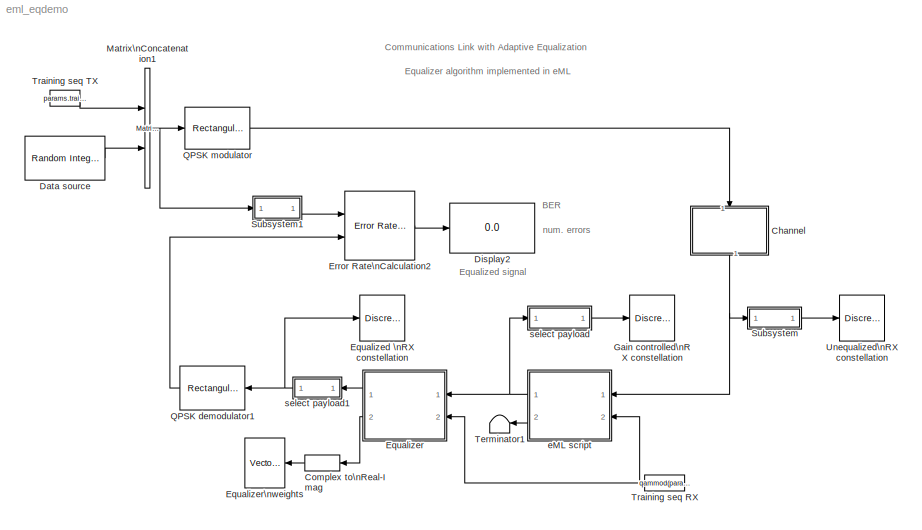
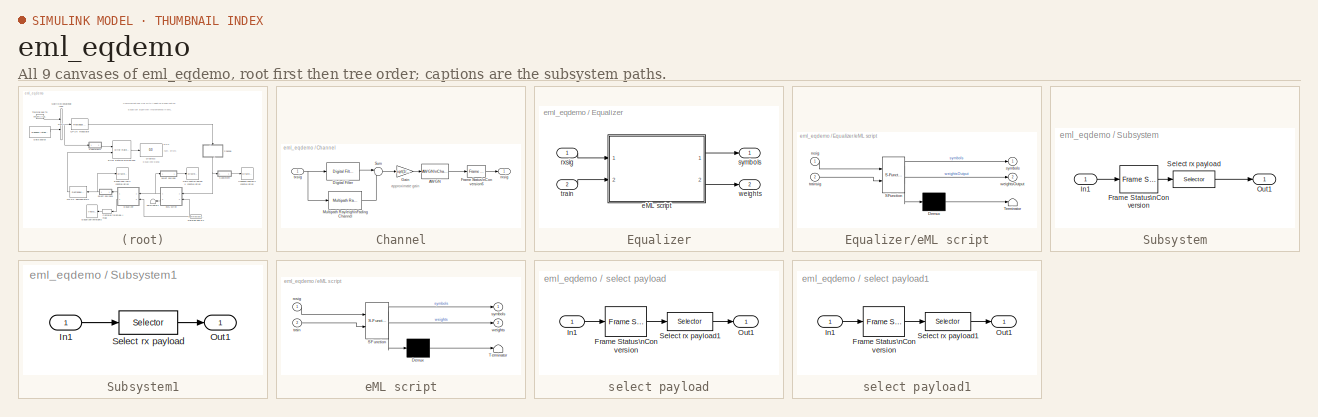
[diagram: thumbnail index - all 9 canvases of the model, root first then tree order]
MODEL eml_eqdemo
KIND model
CONFIG InitFcn = initsim
BLOCK [Reference]  Gain controlled\nRX constellation  REF=commsink2/Discrete-Time\nScatter Plot\nScope
  AxisGrid = on
  FigPos = [261 32 242 242]
  FrameNumber = off
  LineColors = b
  LineMarkers = .
  Ports = [1]
  ShowPortLabels = on
  SourceBlock = commsink2/Discrete-Time\nScatter Plot\nScope
  SourceType = Discrete-Time Scatter Plot Scope
  Tag = ScatterPlot
  block_type_ = scatter
  fading = on
  figTitle = Scatter Plot
  inphaseLabel = In-phase Amplitude
  numLinesMax = 8
  numNewFrames = 100
  numTraces = 200
  offsetEye = 0
  openScopeAtSimStart = on
  quadratureLabel = Quadrature Amplitude
  render = on
  sampPerSymb = 1
  xMax = 1.93655728027381
  xMin = -1.84900078842742
  yMax = 1.91193457746611
  yMin = -1.87362349123512
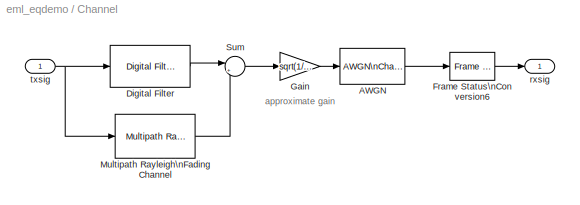
BLOCK [SubSystem] Channel
  MaskCallbackString = ||||
  MaskDisplay = disp('Rician Fading\\nChannel')
  MaskEnableString = on,on,on,on,on
  MaskIconFrame = on
  MaskIconOpaque = on
  MaskIconRotate = none
  MaskIconUnits = autoscale
  MaskPromptString = Fading component gains (dB):|Spectral component gains (dB):|Maximum Doppler shift (Hz):|SNR (dB):|Symbol period (s):
  MaskStyleString = edit,edit,edit,edit,edit
  MaskTabNameString = ,,,,
  MaskToolTipString = on,on,on,on,on
  MaskTunableValueString = on,on,on,on,on
  MaskType = 4-path Rician fading chanel
  MaskValueString = 0+[0 -9 -60 -90]|[-10 -60 -60 -60]|0.0001/params.symbolPeriod|60|params.symbolPeriod
  MaskVarAliasString = ,,,,
  MaskVariables = gain_fade=@1;gain_spec=@2;doppler=@3;SNRdB=@4;T=@5;
  MaskVisibilityString = on,on,on,on,on
  MinAlgLoopOccurrences = off
  Ports = [1, 1]
  PropExecContextAcrossSSBoundary = on
  RTWSystemCode = Auto
  TreatAsAtomicUnit = off
BLOCK [Reference] Channel/AWGN  REF=commchan2/AWGN\nChannel
  EbNodB = 10
  EsNodB = 10
  Ports = [1, 1]
  Ps = 1
  SNRdB = SNRdB
  ShowPortLabels = on
  SourceBlock = commchan2/AWGN\nChannel
  SourceType = AWGN Channel
  Tsym = 1
  bitsPerSym = 1
  noiseMode = Signal to noise ratio  (SNR)
  seed = 67
  variance = 1
BLOCK [Reference] Channel/Digital Filter  REF=dsparch4/Digital Filter
  AllPoleFiltStruct = Direct form
  BiQuadCoeffs = [1 0.3 0.4 1 0.1 0.2]
  CoeffSource = Specify via dialog
  DenCoeffs = [1 0.1]
  FIRFiltStruct = Direct form
  FiltPerSampPopup = One filter per frame
  IC = 0
  ICden = 0
  ICnum = 0
  IIRFiltStruct = Direct form II transposed
  LatticeCoeffs = [0.2 0.4]
  NumCoeffs = 10.^(gain_spec/20)
  Ports = [1, 1]
  SourceBlock = dsparch4/Digital Filter
  SourceType = Digital Filter
  TypePopup = FIR (all zeros)
  accumFracLength = 30
  accumMode = Same as output
  accumWordLength = 32
  additionalParams = off
  allowOverrides = on
  denIgnore = on
  firstCoeffFracLength = 15
  firstCoeffMode = Same as input
  firstCoeffWordLength = 16
  memoryFracLength = 15
  memoryMode = Same as input
  memoryWordLength = 16
  outputFracLength = 15
  outputMode = Same as input
  outputWordLength = 16
  overflowMode = off
  prodOutputFracLength = 30
  prodOutputMode = Same as accumulator
  prodOutputWordLength = 32
  roundingMode = Floor
  secondCoeffFracLength = 15
  secondCoeffMode = Same as numerator
  secondCoeffWordLength = 16
  showAcc = off
  showCoeff = off
  showMem = off
  showMpy = off
  showOut = off
  thirdCoeffFracLength = 15
  thirdCoeffMode = Same as input
  thirdCoeffWordLength = 16
BLOCK [Reference] Channel/Frame Status\nConversion6  REF=dspsigattribs/Frame Status\nConversion
  Ports = [1, 1]
  ShowPortLabels = off
  SourceBlock = dspsigattribs/Frame Status\nConversion
  SourceType = Frame Status Conversion
  growRefPort = off
  outframe = Sample-based
BLOCK [Gain] Channel/Gain
  Gain = sqrt(1/(sum(10.^(gain_spec/10))+sum(10.^(gain_fade/10))))
BLOCK [Reference] Channel/Multipath Rayleigh\nFading Channel  REF=commchan2/Multipath Rayleigh\nFading Channel
  Fd = doppler
  Ports = [1, 1]
  Seed = 73
  ShowPortLabels = on
  SourceBlock = commchan2/Multipath Rayleigh\nFading Channel
  SourceType = Multipath Rayleigh Fading Channel
  delayVec = (0:3)*T
  gainVecdB = gain_fade
  normGain = off
  simTs = T
BLOCK [Sum] Channel/Sum
  IconShape = round
  InputSameDT = off
  Inputs = |++
  OutDataTypeMode = Inherit via internal rule
  Ports = [2, 1]
BLOCK [Outport] Channel/rxsig
  IconDisplay = Port number
BLOCK [Inport] Channel/txsig
  IconDisplay = Port number
  LatchInput = off
  Port = 1
BLOCK [ComplexToRealImag] Complex to\nReal-Imag
  Output = Real
  Ports = [1, 1]
BLOCK [Reference] Data source  REF=commrandsrc2/Random Integer\nGenerator
  Ports = [0, 1]
  ShowPortLabels = on
  SourceBlock = commrandsrc2/Random Integer\nGenerator
  SourceType = Random Integer Generator
  Ts = params.sourcePeriod
  frameBased = on
  mul = 4
  orient = off
  sampPerFrame = params.Nsource
  seed = 37
BLOCK [Display] Display2
  Decimation = 1
  Ports = [1]
BLOCK [Reference] Equalized \nRX constellation  REF=commsink2/Discrete-Time\nScatter Plot\nScope
  AxisGrid = on
  FigPos = [510 32 242 242]
  FrameNumber = off
  LineColors = b
  LineMarkers = .
  Ports = [1]
  ShowPortLabels = on
  SourceBlock = commsink2/Discrete-Time\nScatter Plot\nScope
  SourceType = Discrete-Time Scatter Plot Scope
  Tag = ScatterPlot
  block_type_ = scatter
  fading = on
  figTitle = Scatter Plot
  inphaseLabel = In-phase Amplitude
  numLinesMax = 8
  numNewFrames = 100
  numTraces = 200
  offsetEye = 0
  openScopeAtSimStart = on
  quadratureLabel = Quadrature Amplitude
  render = on
  sampPerSymb = 1
  xMax = 1.93655728027381
  xMin = -1.84900078842742
  yMax = 1.91193457746611
  yMin = -1.87362349123512
BLOCK [SubSystem] Equalizer
  MaskCallbackString = ||
  MaskEnableString = on,on,on
  MaskIconFrame = on
  MaskIconOpaque = off
  MaskIconRotate = none
  MaskIconUnits = autoscale
  MaskInitialization = M = 6; % number of weights\nmu = 0.025; % step size\nlambda = 0.99; % forget factor\ndelta1 = 0.1 + 0i; % diagonal element of inv. corr. mtx.\n
  MaskPromptString = Adaptive algorithm:|Reference tap:|Reset weights each frame
  MaskStyleString = popup(LMS|RLS),popup(1|2|3|4|5|6),checkbox
  MaskTabNameString = ,,
  MaskToolTipString = on,on,on
  MaskTunableValueString = off,off,off
  MaskType = Receiver processing (adaptive equalizer)
  MaskValueString = RLS|4|off
  MaskVarAliasString = ,,
  MaskVariables = eqMode=@1;refTap=@2;resetWeights=@3;
  MaskVisibilityString = on,on,on
  MinAlgLoopOccurrences = off
  Ports = [2, 2]
  PropExecContextAcrossSSBoundary = on
  RTWSystemCode = Auto
  TreatAsAtomicUnit = off
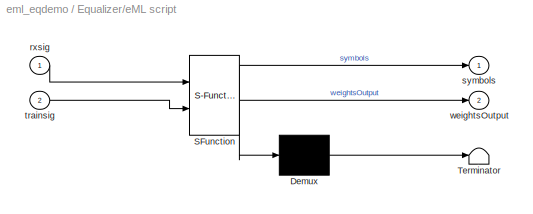
BLOCK [SubSystem] Equalizer/eML script
  MaskDescription = Stateflow diagram
  MaskDisplay = disp('equalizer');
  MaskIconFrame = on
  MaskIconOpaque = off
  MaskIconRotate = none
  MaskIconUnits = autoscale
  MaskSelfModifiable = on
  MaskType = Stateflow
  MinAlgLoopOccurrences = off
  Ports = [2, 2]
  PropExecContextAcrossSSBoundary = on
  RTWSystemCode = Auto
  TreatAsAtomicUnit = off
BLOCK [Demux] Equalizer/eML script/ Demux 
  Outputs = 1
  Ports = [1, 1]
BLOCK [S-Function] Equalizer/eML script/ SFunction 
  FunctionName = sf_sfun
  Parameters = delta1,eqMode,lambda,mu,refTap,resetWeights
  PortCounts = [2 3]
  Ports = [2, 3]
  Tag = Stateflow S-Function eml_eqdemo 2
BLOCK [Terminator] Equalizer/eML script/ Terminator 
BLOCK [Inport] Equalizer/eML script/rxsig
  IconDisplay = Port number
  LatchInput = off
  Port = 1
BLOCK [Outport] Equalizer/eML script/symbols
  IconDisplay = Port number
BLOCK [Inport] Equalizer/eML script/trainsig
  IconDisplay = Port number
  LatchInput = off
  Port = 2
BLOCK [Outport] Equalizer/eML script/weightsOutput
  IconDisplay = Port number
  Port = 2
BLOCK [Inport] Equalizer/rxsig
  IconDisplay = Port number
  LatchInput = off
  Port = 1
BLOCK [Outport] Equalizer/symbols
  IconDisplay = Port number
BLOCK [Inport] Equalizer/train
  IconDisplay = Port number
  LatchInput = off
  Port = 2
BLOCK [Outport] Equalizer/weights
  IconDisplay = Port number
  Port = 2
BLOCK [Reference] Equalizer\nweights  REF=dspsnks4/Vector\nScope
  AxisGrid = on
  AxisLegend = off
  AxisProperties = off
  AxisZoom = off
  DisplayProperties = off
  Domain = User-defined
  FigPos = [762 31 251 243]
  FrameNumber = off
  HorizSpan = 1
  InheritXIncr = off
  LineColors = [0 0 1]
  LineMarkers = .
  LineProperties = off
  Memory = off
  OpenScopeAtSimStart = on
  OpenScopeImmediately = off
  Ports = [1]
  ScopeProperties = off
  ShowPortLabels = off
  SourceBlock = dspsnks4/Vector\nScope
  SourceType = Vector Scope
  XIncr = 1
  XLabel = delay
  XRange = [0...Fs/2]
  XUnits = Hertz
  YLabel = Amplitude
  YMax = 2
  YMin = -2
  YUnits = dB
BLOCK [Reference] Error Rate\nCalculation2  REF=commsink2/Error Rate\nCalculation
  N = 0
  PMode = Port
  Ports = [2, 1]
  RsMode2 = off
  SourceBlock = commsink2/Error Rate\nCalculation
  SourceType = Error Rate Calculation
  WsName = ErrorVec
  cp_mode = Entire frame
  maxBits = 1e6
  numErr = 100
  st_delay = 0
  stop = off
  subframe = []
BLOCK [Reference] Matrix\nConcatenation1  REF=simulink/Math\nOperations/Matrix\nConcatenation
  Ports = [2, 1]
  SourceBlock = simulink/Math\nOperations/Matrix\nConcatenation
  SourceType = Matrix Concatenation
  catMethod = Vertical
  numInports = 2
BLOCK [Reference] QPSK demodulator1  REF=commdigbbndam2/Rectangular QAM\nDemodulator\nBaseband
  AvgPow = 1
  Dec = Binary
  M = params.M
  MinDist = 2
  OutType = Integer
  PeakPow = 1
  Ph = 0
  Ports = [1, 1]
  PowType = Min. distance between symbols
  SourceBlock = commdigbbndam2/Rectangular QAM\nDemodulator\nBaseband
  SourceType = Rectangular QAM Demodulator Baseband
  numSamp = 1
BLOCK [Reference] QPSK modulator  REF=commdigbbndam2/Rectangular QAM\nModulator\nBaseband
  AvgPow = 1
  Enc = Binary
  InType = Integer
  M = params.M
  MinDist = 2
  PeakPow = 1
  Ph = 0
  Ports = [1, 1]
  PowType = Min. distance between symbols
  SourceBlock = commdigbbndam2/Rectangular QAM\nModulator\nBaseband
  SourceType = Rectangular QAM Modulator Baseband
  numSamp = 1
BLOCK [SubSystem] Subsystem
  MaskDisplay = disp('Payload')\n
  MaskIconFrame = on
  MaskIconOpaque = on
  MaskIconRotate = none
  MaskIconUnits = autoscale
  MinAlgLoopOccurrences = off
  Ports = [1, 1]
  PropExecContextAcrossSSBoundary = on
  RTWSystemCode = Auto
  TreatAsAtomicUnit = off
BLOCK [Reference] Subsystem/Frame Status\nConversion  REF=dspsigattribs/Frame Status\nConversion
  Ports = [1, 1]
  ShowPortLabels = off
  SourceBlock = dspsigattribs/Frame Status\nConversion
  SourceType = Frame Status Conversion
  growRefPort = off
  outframe = Frame-based
BLOCK [Inport] Subsystem/In1
  IconDisplay = Port number
  LatchInput = off
  Port = 1
BLOCK [Outport] Subsystem/Out1
  IconDisplay = Port number
BLOCK [Selector] Subsystem/Select rx payload
  Elements = (params.Ntrain+1):(params.Nsymbols-10)
  InputPortWidth = params.Nsymbols
  Ports = [1, 1]
BLOCK [SubSystem] Subsystem1
  MaskDisplay = disp('Payload')\n
  MaskIconFrame = on
  MaskIconOpaque = on
  MaskIconRotate = none
  MaskIconUnits = autoscale
  MinAlgLoopOccurrences = off
  Ports = [1, 1]
  PropExecContextAcrossSSBoundary = on
  RTWSystemCode = Auto
  TreatAsAtomicUnit = off
BLOCK [Inport] Subsystem1/In1
  IconDisplay = Port number
  LatchInput = off
  Port = 1
BLOCK [Outport] Subsystem1/Out1
  IconDisplay = Port number
BLOCK [Selector] Subsystem1/Select rx payload
  Elements = (params.Ntrain+1):(params.Nsymbols-10)
  InputPortWidth = params.Nsymbols
  Ports = [1, 1]
BLOCK [Terminator] Terminator1
BLOCK [Constant] Training seq RX
  Value = qammod(params.trainSeq, params.M)
BLOCK [Constant] Training seq TX
  Value = params.trainSeq
BLOCK [Reference] Unequalized\nRX constellation  REF=commsink2/Discrete-Time\nScatter Plot\nScope
  AxisGrid = on
  FigPos = [9 32 242 242]
  FrameNumber = off
  LineColors = b
  LineMarkers = .
  Ports = [1]
  ShowPortLabels = on
  SourceBlock = commsink2/Discrete-Time\nScatter Plot\nScope
  SourceType = Discrete-Time Scatter Plot Scope
  Tag = ScatterPlot
  block_type_ = scatter
  fading = on
  figTitle = Scatter Plot
  inphaseLabel = In-phase Amplitude
  numLinesMax = 8
  numNewFrames = 50
  numTraces = 500
  offsetEye = 0
  openScopeAtSimStart = on
  quadratureLabel = Quadrature Amplitude
  render = on
  sampPerSymb = 1
  xMax = 2
  xMin = -2
  yMax = 2
  yMin = -2
BLOCK [SubSystem] eML script
  MaskDescription = Stateflow diagram
  MaskDisplay = disp('gaincontrol');
  MaskIconFrame = on
  MaskIconOpaque = off
  MaskIconRotate = none
  MaskIconUnits = autoscale
  MaskSelfModifiable = on
  MaskType = Stateflow
  MinAlgLoopOccurrences = off
  Ports = [2, 2]
  PropExecContextAcrossSSBoundary = on
  RTWSystemCode = Auto
  TreatAsAtomicUnit = off
BLOCK [Demux] eML script/ Demux 
  Outputs = 1
  Ports = [1, 1]
BLOCK [S-Function] eML script/ SFunction 
  FunctionName = sf_sfun
  PortCounts = [2 3]
  Ports = [2, 3]
  Tag = Stateflow S-Function eml_eqdemo 1
BLOCK [Terminator] eML script/ Terminator 
BLOCK [Inport] eML script/rxsig
  IconDisplay = Port number
  LatchInput = off
  Port = 1
BLOCK [Outport] eML script/symbols
  IconDisplay = Port number
BLOCK [Inport] eML script/train
  IconDisplay = Port number
  LatchInput = off
  Port = 2
BLOCK [Outport] eML script/weights
  IconDisplay = Port number
  Port = 2
BLOCK [SubSystem] select payload
  MaskDisplay = disp('Payload')
  MaskIconFrame = on
  MaskIconOpaque = on
  MaskIconRotate = none
  MaskIconUnits = autoscale
  MinAlgLoopOccurrences = off
  Ports = [1, 1]
  PropExecContextAcrossSSBoundary = on
  RTWSystemCode = Auto
  TreatAsAtomicUnit = off
BLOCK [Reference] select payload/Frame Status\nConversion  REF=dspsigattribs/Frame Status\nConversion
  Ports = [1, 1]
  ShowPortLabels = off
  SourceBlock = dspsigattribs/Frame Status\nConversion
  SourceType = Frame Status Conversion
  growRefPort = off
  outframe = Frame-based
BLOCK [Inport] select payload/In1
  IconDisplay = Port number
  LatchInput = off
  Port = 1
BLOCK [Outport] select payload/Out1
  IconDisplay = Port number
BLOCK [Selector] select payload/Select rx payload1
  Elements = (params.Ntrain+1):(params.Nsymbols-10)
  InputPortWidth = params.Nsymbols
  Ports = [1, 1]
BLOCK [SubSystem] select payload1
  MaskDisplay = disp('Payload')
  MaskIconFrame = on
  MaskIconOpaque = on
  MaskIconRotate = none
  MaskIconUnits = autoscale
  MinAlgLoopOccurrences = off
  Ports = [1, 1]
  PropExecContextAcrossSSBoundary = on
  RTWSystemCode = Auto
  TreatAsAtomicUnit = off
BLOCK [Reference] select payload1/Frame Status\nConversion  REF=dspsigattribs/Frame Status\nConversion
  Ports = [1, 1]
  ShowPortLabels = off
  SourceBlock = dspsigattribs/Frame Status\nConversion
  SourceType = Frame Status Conversion
  growRefPort = off
  outframe = Frame-based
BLOCK [Inport] select payload1/In1
  IconDisplay = Port number
  LatchInput = off
  Port = 1
BLOCK [Outport] select payload1/Out1
  IconDisplay = Port number
BLOCK [Selector] select payload1/Select rx payload1
  Elements = (params.Ntrain+1):(params.Nsymbols-10)
  InputPortWidth = params.Nsymbols
  Ports = [1, 1]
ANNOTATION (root): BER
ANNOTATION (root): Communications Link with Adaptive Equalization
ANNOTATION (root): Equalized signal
ANNOTATION (root): Equalizer algorithm implemented in eML
ANNOTATION (root): num. errors
ANNOTATION Channel: approximate gain
LINE Channel/AWGN:1 -> Channel/Frame Status\nConversion6:1
LINE Channel/Digital Filter:1 -> Channel/Sum:1
LINE Channel/Frame Status\nConversion6:1 -> Channel/rxsig:1
LINE Channel/Gain:1 -> Channel/AWGN:1
LINE Channel/Multipath Rayleigh\nFading Channel:1 -> Channel/Sum:2
LINE Channel/Sum:1 -> Channel/Gain:1
NET Channel/txsig:1 -> Channel/Digital Filter:1, Channel/Multipath Rayleigh\nFading Channel:1
NET Channel:1 -> Subsystem:1, eML script:1
LINE Complex to\nReal-Imag:1 -> Equalizer\nweights:1
LINE Data source:1 -> Matrix\nConcatenation1:2
LINE Equalizer/eML script/ Demux :1 -> Equalizer/eML script/ Terminator :1
LINE Equalizer/eML script/ SFunction :1 -> Equalizer/eML script/ Demux :1
LINE Equalizer/eML script/ SFunction :2 -> Equalizer/eML script/symbols:1
LINE Equalizer/eML script/ SFunction :3 -> Equalizer/eML script/weightsOutput:1
LINE Equalizer/eML script/rxsig:1 -> Equalizer/eML script/ SFunction :1
LINE Equalizer/eML script/trainsig:1 -> Equalizer/eML script/ SFunction :2
LINE Equalizer/eML script:1 -> Equalizer/symbols:1
LINE Equalizer/eML script:2 -> Equalizer/weights:1
LINE Equalizer/rxsig:1 -> Equalizer/eML script:1
LINE Equalizer/train:1 -> Equalizer/eML script:2
LINE Equalizer:1 -> select payload1:1
LINE Equalizer:2 -> Complex to\nReal-Imag:1
LINE Error Rate\nCalculation2:1 -> Display2:1
NET Matrix\nConcatenation1:1 -> QPSK modulator:1, Subsystem1:1
LINE QPSK demodulator1:1 -> Error Rate\nCalculation2:2
LINE QPSK modulator:1 -> Channel:1
LINE Subsystem/Frame Status\nConversion:1 -> Subsystem/Select rx payload:1
LINE Subsystem/In1:1 -> Subsystem/Frame Status\nConversion:1
LINE Subsystem/Select rx payload:1 -> Subsystem/Out1:1
LINE Subsystem1/In1:1 -> Subsystem1/Select rx payload:1
LINE Subsystem1/Select rx payload:1 -> Subsystem1/Out1:1
LINE Subsystem1:1 -> Error Rate\nCalculation2:1
LINE Subsystem:1 -> Unequalized\nRX constellation:1
NET Training seq RX:1 -> Equalizer:2, eML script:2
LINE Training seq TX:1 -> Matrix\nConcatenation1:1
LINE eML script/ Demux :1 -> eML script/ Terminator :1
LINE eML script/ SFunction :1 -> eML script/ Demux :1
LINE eML script/ SFunction :2 -> eML script/symbols:1
LINE eML script/ SFunction :3 -> eML script/weights:1
LINE eML script/rxsig:1 -> eML script/ SFunction :1
LINE eML script/train:1 -> eML script/ SFunction :2
NET eML script:1 -> Equalizer:1, select payload:1
LINE eML script:2 -> Terminator1:1
LINE select payload/Frame Status\nConversion:1 -> select payload/Select rx payload1:1
LINE select payload/In1:1 -> select payload/Frame Status\nConversion:1
LINE select payload/Select rx payload1:1 -> select payload/Out1:1
LINE select payload1/Frame Status\nConversion:1 -> select payload1/Select rx payload1:1
LINE select payload1/In1:1 -> select payload1/Frame Status\nConversion:1
LINE select payload1/Select rx payload1:1 -> select payload1/Out1:1
NET select payload1:1 -> Equalized \nRX constellation:1, QPSK demodulator1:1
LINE select payload:1 ->  Gain controlled\nRX constellation:1
note: NET lines group one-source signal fan-out (src -> all destinations, sorted); 1:1 wires keep LINE
CHART eML script states=1 transitions=1
  STATE_LABEL 'eML_blk_kernel()'
CHART Equalizer/eML script states=1 transitions=1
  STATE_LABEL 'eML_blk_kernel()'
